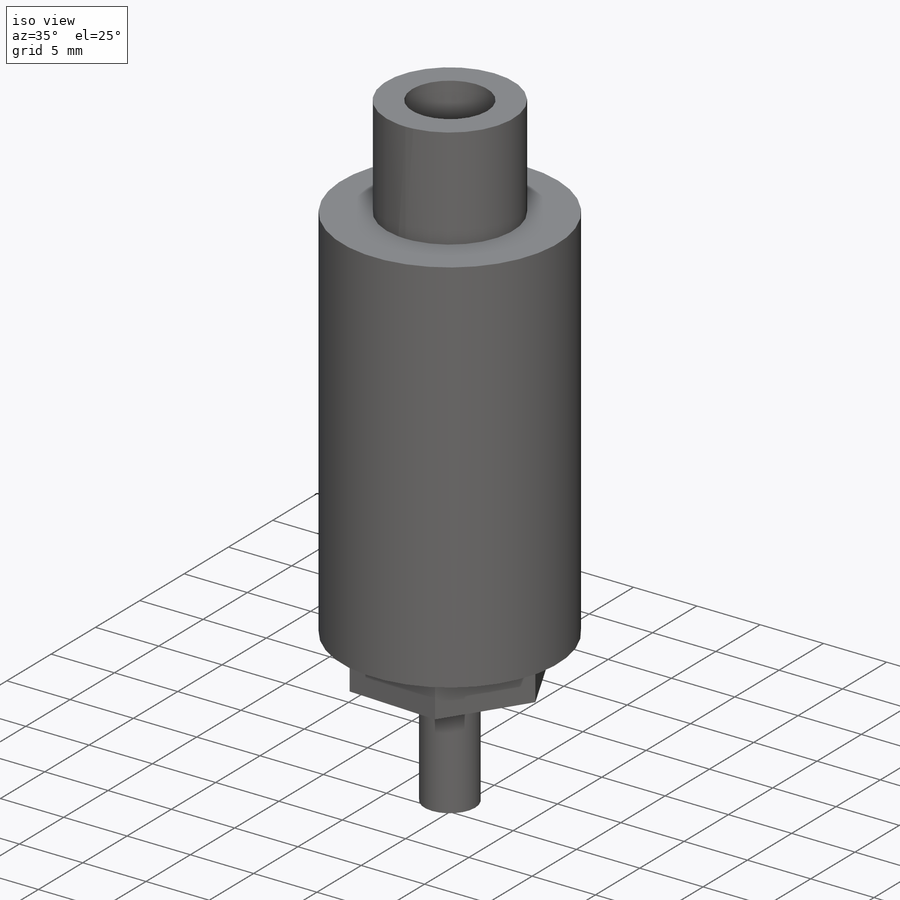
[diagram: iso view]
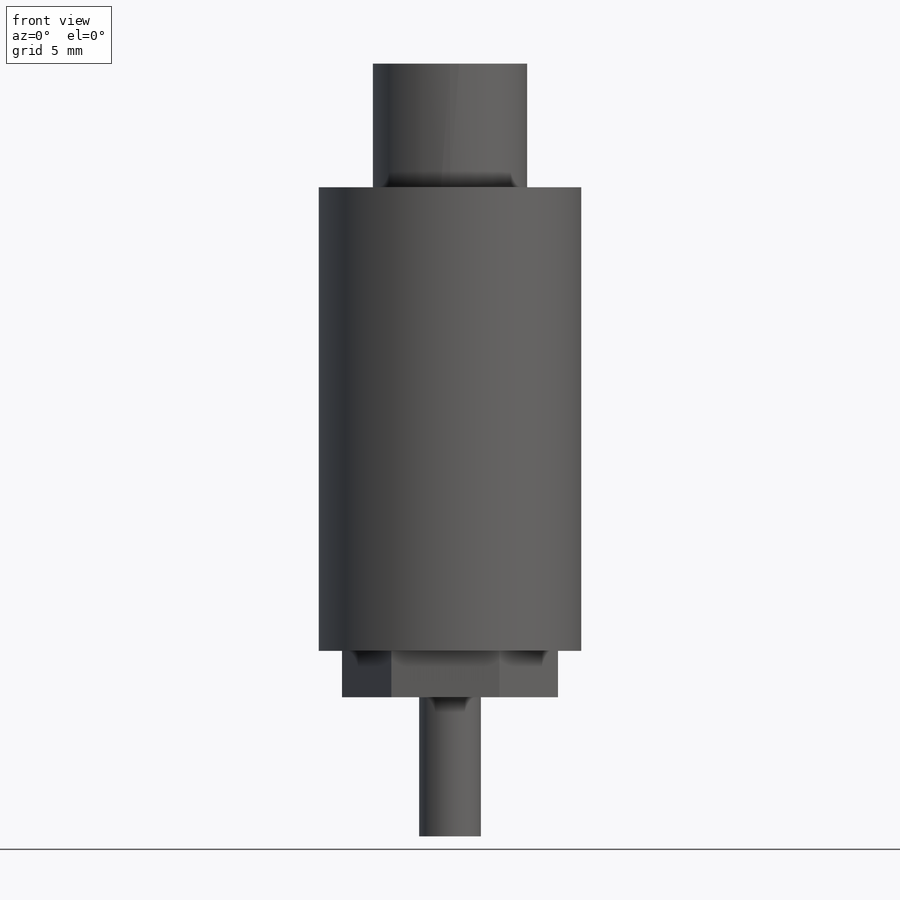
[diagram: front view]
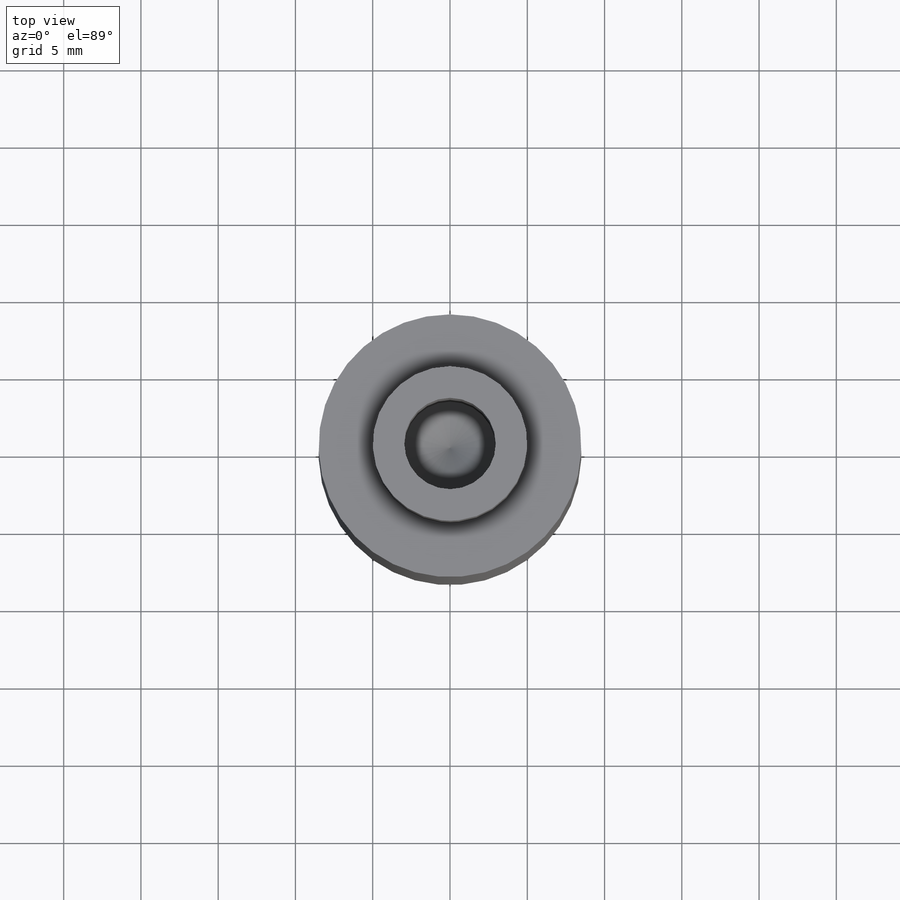
[diagram: top view]
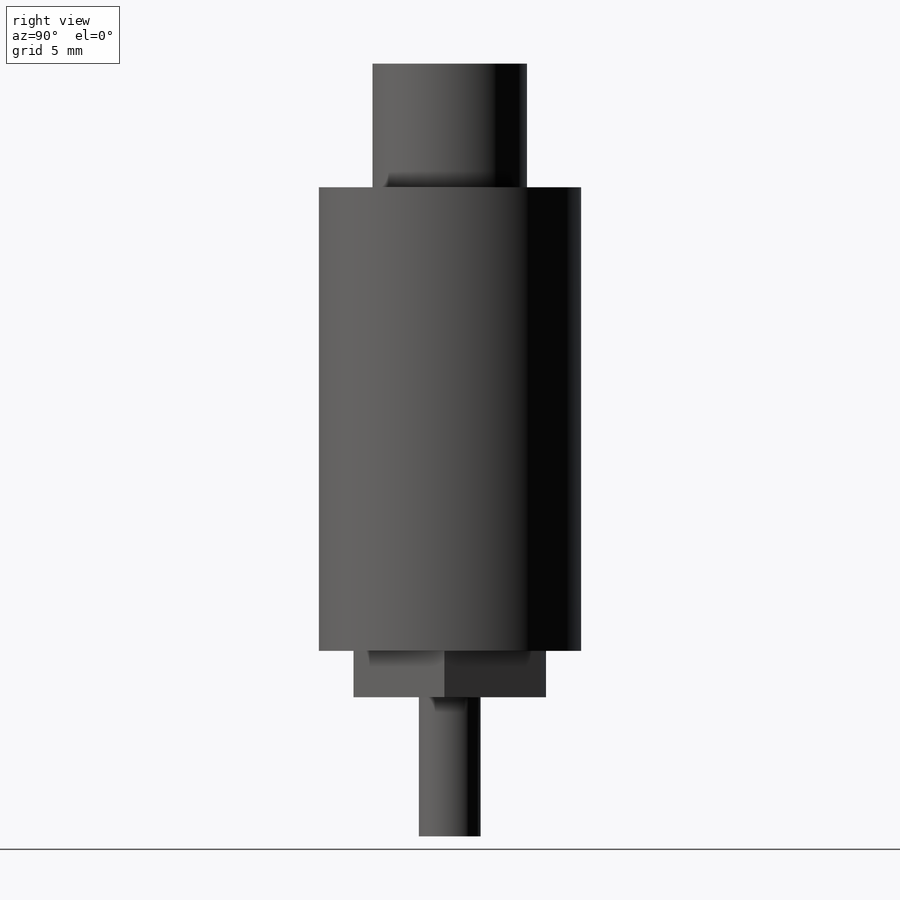
[diagram: right view]
SOLIDWORKS PART (.sldprt)
format: sldprt  version: not decoded by parser v0  size: 130,560 bytes
history: native  units: mm
features: sketch x6, revolve x2, extrude x2, material x1, hole x1 (+12 scaffold rows collapsed)
feature tree (24):
  scaffold x12  (default folders/planes/origin — collapsed)
  material  "Material <not specified>"
  sketch  "Sketch1"
  revolve  "Revolve1"  Angle=360deg
  sketch  "Sketch2"
  extrude  "Boss-Extrude1"  Depth=3mm
  sketch  "Sketch3"
  extrude  "Boss-Extrude2"  Depth=8mm
  sketch  "Sketch4"
  revolve  "Revolve2"  Angle=360deg
  hole  "Hole1"  Diameter=5.917mm Depth=14mm
  sketch  "Sketch6"
  sketch  "Sketch5"  dims[c1.D1=~97.659253deg c1.D2=~82.982399deg c1.Diameter=5.917mm c2.D2=100.0mm c2.D3=~82.982399deg c2.D4=90.0deg c3.D3=~97.716715deg c3.Depth=14.0mm c3.Drill Angle=118.0deg]
decode coverage: 6 of 11 modeling features carry decoded parameters
note: ~ marks probable driven/reference dimensions
note: suppression state not decoded; provenance and decode notes live in map.json
